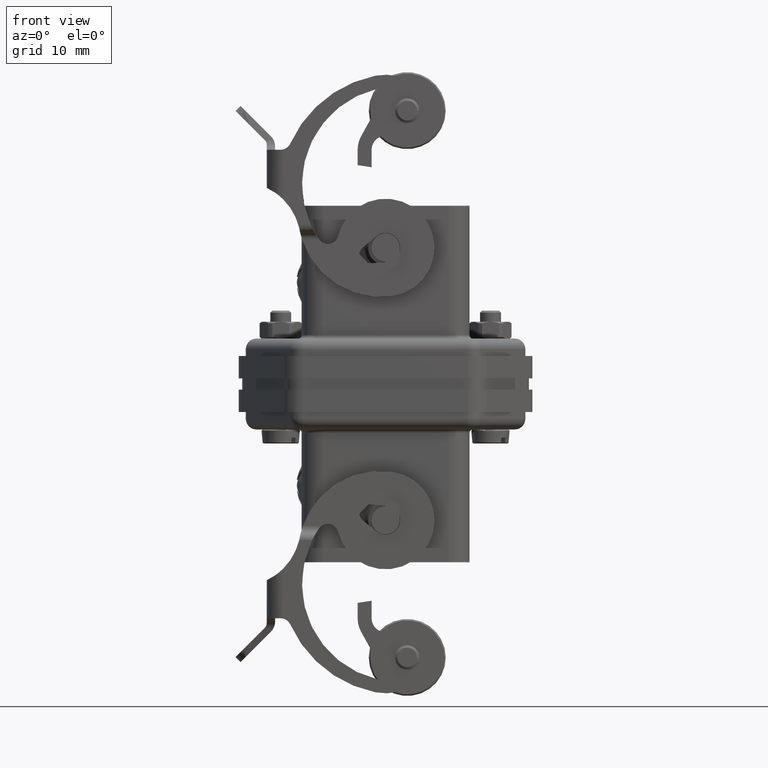
[diagram: clean part render]
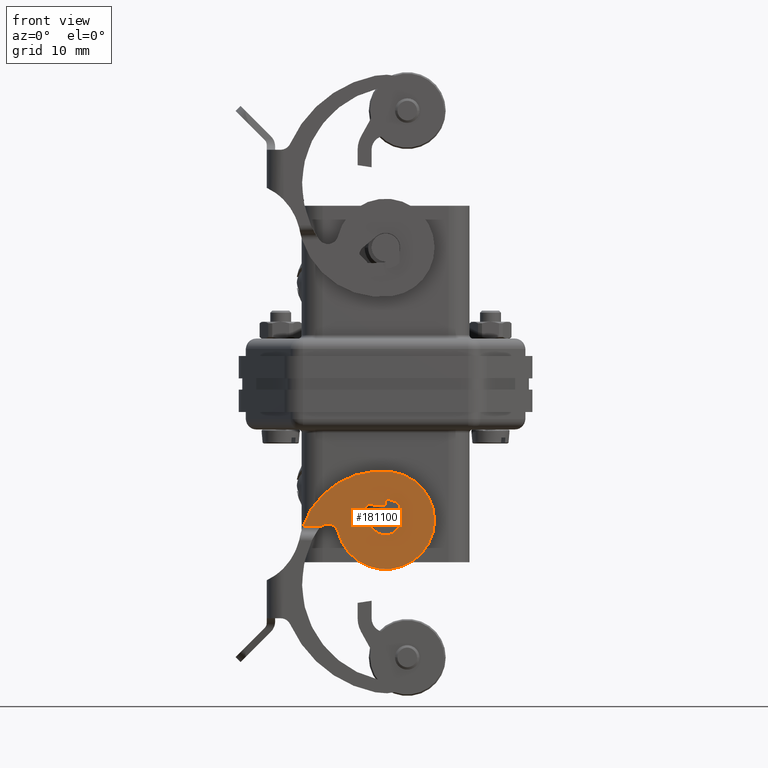
[diagram: same view with one face highlighted and labeled with its STEP entity id]
A machine part, front view. The second image highlights one B-rep face of the part: STEP entity #181100.
In plain terms, the highlighted planar face has unit normal (0, 1, 0).
Its self-contained STEP definition (entity closure, byte-faithful):
#178170=CARTESIAN_POINT('',(0.999999999999995,-15.3,-32.0717967697245));
#178180=VERTEX_POINT('',#178170);
#178210=CARTESIAN_POINT('',(-0.687500000000003,-15.3,-43.7631397208144))
;
#178220=DIRECTION('',(0.,1.,0.));
#178230=DIRECTION('',(0.142857142857143,0.,0.989743318610787));
#178240=AXIS2_PLACEMENT_3D('',#178210,#178220,#178230);
#178250=CIRCLE('',#178240,11.8125);
#178260=CARTESIAN_POINT('',(-11.8153335628865,-15.3,-39.8));
#178270=VERTEX_POINT('',#178260);
#178280=EDGE_CURVE('',#178270,#178180,#178250,.T.);
#179360=CARTESIAN_POINT('',(-6.80346949958872,-15.3,-40.6470588235294));
#179370=VERTEX_POINT('',#179360);
#179930=CARTESIAN_POINT('',(-9.16135582092916,-15.3,-39.8));
#179940=VERTEX_POINT('',#179930);
#179970=CARTESIAN_POINT('',(-8.26135582092916,-15.3,-41.));
#179980=DIRECTION('',(0.,-1.,0.));
#179990=DIRECTION('',(-0.971924214226959,0.,-0.235294117647059));
#180000=AXIS2_PLACEMENT_3D('',#179970,#179980,#179990);
#180010=CIRCLE('',#180000,1.5);
#180020=EDGE_CURVE('',#179370,#179940,#180010,.T.);
#180130=CARTESIAN_POINT('',(-3.5527136788005E-15,-15.3,-39.));
#180140=DIRECTION('',(0.,1.,0.));
#180150=DIRECTION('',(-0.971924214226959,0.,-0.235294117647059));
#180160=AXIS2_PLACEMENT_3D('',#180130,#180140,#180150);
#180170=CIRCLE('',#180160,7.);
#180180=EDGE_CURVE('',#178180,#179370,#180170,.T.);
#180250=CARTESIAN_POINT('',(-2.40766678144325,-15.3,-38.9753198604072));
#180260=DIRECTION('',(0.,1.,-0.));
#180270=DIRECTION('',(-1.,0.,0.));
#180280=AXIS2_PLACEMENT_3D('',#180250,#180260,#180270);
#180290=PLANE('',#180280);
#180300=ORIENTED_EDGE('',*,*,#178280,.F.);
#180310=ORIENTED_EDGE('',*,*,#180180,.F.);
#180320=ORIENTED_EDGE('',*,*,#180020,.F.);
#180330=CARTESIAN_POINT('',(-9.16135582092916,-15.3,-39.8));
#180340=DIRECTION('',(-1.,0.,0.));
#180350=VECTOR('',#180340,2.65397774195733);
#180360=LINE('',#180330,#180350);
#180370=EDGE_CURVE('',#179940,#178270,#180360,.T.);
#180380=ORIENTED_EDGE('',*,*,#180370,.F.);
#180390=EDGE_LOOP('',(#180380,#180320,#180310,#180300));
#180400=FACE_OUTER_BOUND('',#180390,.T.);
#180410=CARTESIAN_POINT('',(2.,-15.3,-36.7639320225002));
#180420=DIRECTION('',(0.,0.,-1.));
#180430=VECTOR('',#180420,1.5957555537565);
#180440=LINE('',#180410,#180430);
#180450=CARTESIAN_POINT('',(2.,-15.3,-36.7639320225002));
#180460=VERTEX_POINT('',#180450);
#180470=CARTESIAN_POINT('',(2.,-15.3,-38.3596875762567));
#180480=VERTEX_POINT('',#180470);
#180490=EDGE_CURVE('',#180460,#180480,#180440,.T.);
#180500=ORIENTED_EDGE('',*,*,#180490,.T.);
#180510=CARTESIAN_POINT('',(-3.5527136788005E-15,-15.3,-39.));
#180520=DIRECTION('',(0.,1.,0.));
#180530=DIRECTION('',(0.,0.,1.));
#180540=AXIS2_PLACEMENT_3D('',#180510,#180520,#180530);
#180550=CIRCLE('',#180540,3.);
#180560=CARTESIAN_POINT('',(-3.5527136788005E-15,-15.3,-36.));
#180570=VERTEX_POINT('',#180560);
#180580=EDGE_CURVE('',#180570,#180460,#180550,.T.);
#180590=ORIENTED_EDGE('',*,*,#180580,.T.);
#180600=CARTESIAN_POINT('',(-3.5527136788005E-15,-15.3,-36.8961685299273
));
#180610=DIRECTION('',(0.,0.,1.));
#180620=VECTOR('',#180610,0.896168529927339);
#180630=LINE('',#180600,#180620);
#180640=CARTESIAN_POINT('',(-3.5527136788005E-15,-15.3,-36.8961685299273
));
#180650=VERTEX_POINT('',#180640);
#180660=EDGE_CURVE('',#180650,#180570,#180630,.T.);
#180670=ORIENTED_EDGE('',*,*,#180660,.T.);
#180680=CARTESIAN_POINT('',(-3.5527136788005E-15,-15.3,-36.8961685299273
));
#180690=DIRECTION('',(-0.998178813214288,-0.,0.060324595731058));
#180700=VECTOR('',#180690,2.50456127389603);
#180710=LINE('',#180680,#180700);
#180720=CARTESIAN_POINT('',(-2.5,-15.3,-36.7450818835959));
#180730=VERTEX_POINT('',#180720);
#180740=EDGE_CURVE('',#180650,#180730,#180710,.T.);
#180750=ORIENTED_EDGE('',*,*,#180740,.F.);
#180760=CARTESIAN_POINT('',(-2.5,-15.3,-36.7450818835959));
#180770=DIRECTION('',(-0.687828294728935,0.,-0.725873430406628));
#180780=VECTOR('',#180770,1.81484998470472);
#180790=LINE('',#180760,#180780);
#180800=CARTESIAN_POINT('',(-3.74830517016828,-15.3,-38.0624332676669));
#180810=VERTEX_POINT('',#180800);
#180820=EDGE_CURVE('',#180730,#180810,#180790,.T.);
#180830=ORIENTED_EDGE('',*,*,#180820,.F.);
#180840=CARTESIAN_POINT('',(-2.5,-15.3,-37.9973625205439));
#180850=DIRECTION('',(0.,-1.,0.));
#180860=DIRECTION('',(-0.998644136134622,0.,-0.052056597698412));
#180870=AXIS2_PLACEMENT_3D('',#180840,#180850,#180860);
#180880=CIRCLE('',#180870,1.25);
#180890=CARTESIAN_POINT('',(-3.3076309100103,-15.3,-38.9514234793908));
#180900=VERTEX_POINT('',#180890);
#180910=EDGE_CURVE('',#180810,#180900,#180880,.T.);
#180920=ORIENTED_EDGE('',*,*,#180910,.F.);
#180930=CARTESIAN_POINT('',(-3.3076309100103,-15.3,-38.9514234793908));
#180940=DIRECTION('',(0.763248767077548,0.,-0.646104728008241));
#180950=VECTOR('',#180940,2.55593073364872);
#180960=LINE('',#180930,#180950);
#180970=CARTESIAN_POINT('',(-1.35681992881731,-15.3,-40.6028224108628));
#180980=VERTEX_POINT('',#180970);
#180990=EDGE_CURVE('',#180900,#180980,#180960,.T.);
#181000=ORIENTED_EDGE('',*,*,#180990,.F.);
#181010=CARTESIAN_POINT('',(-3.5527136788005E-15,-15.3,-39.));
#181020=DIRECTION('',(0.,-1.,0.));
#181030=DIRECTION('',(-0.646104728008241,0.,-0.763248767077548));
#181040=AXIS2_PLACEMENT_3D('',#181010,#181020,#181030);
#181050=CIRCLE('',#181040,2.1);
#181060=EDGE_CURVE('',#180980,#180480,#181050,.T.);
#181070=ORIENTED_EDGE('',*,*,#181060,.F.);
#181080=EDGE_LOOP('',(#181070,#181000,#180920,#180830,#180750,#180670,
#180590,#180500));
#181090=FACE_BOUND('',#181080,.T.);
#181100=ADVANCED_FACE('',(#180400,#181090),#180290,.F.);